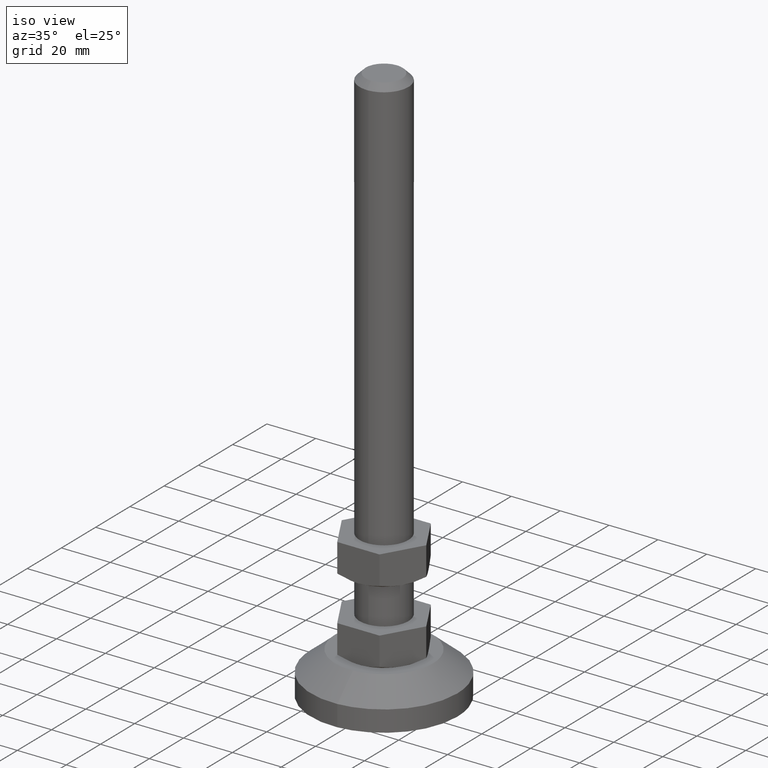
[diagram: clean part render]
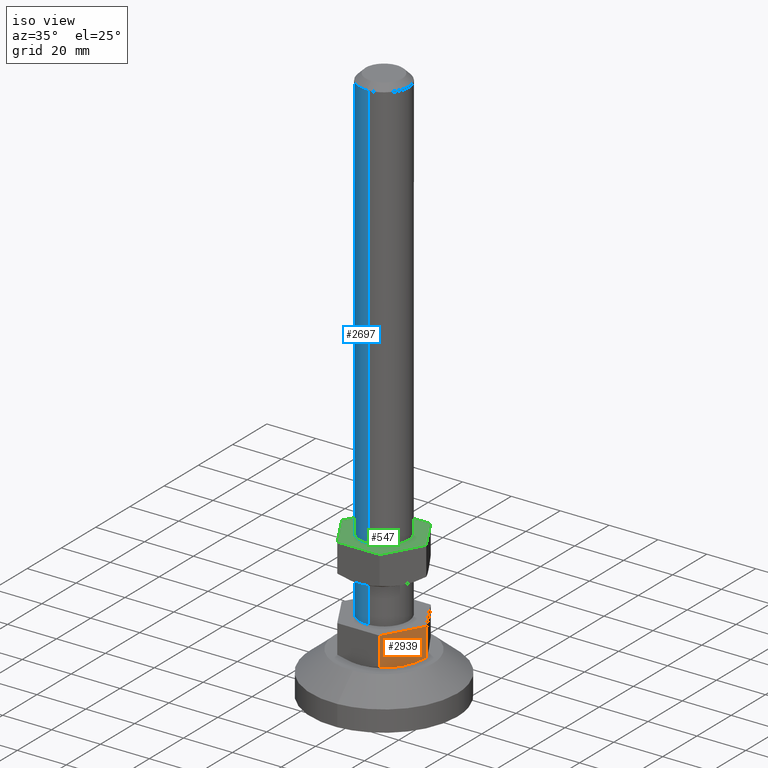
[diagram: same view with three faces highlighted in distinct colors, each labeled with its STEP entity id]
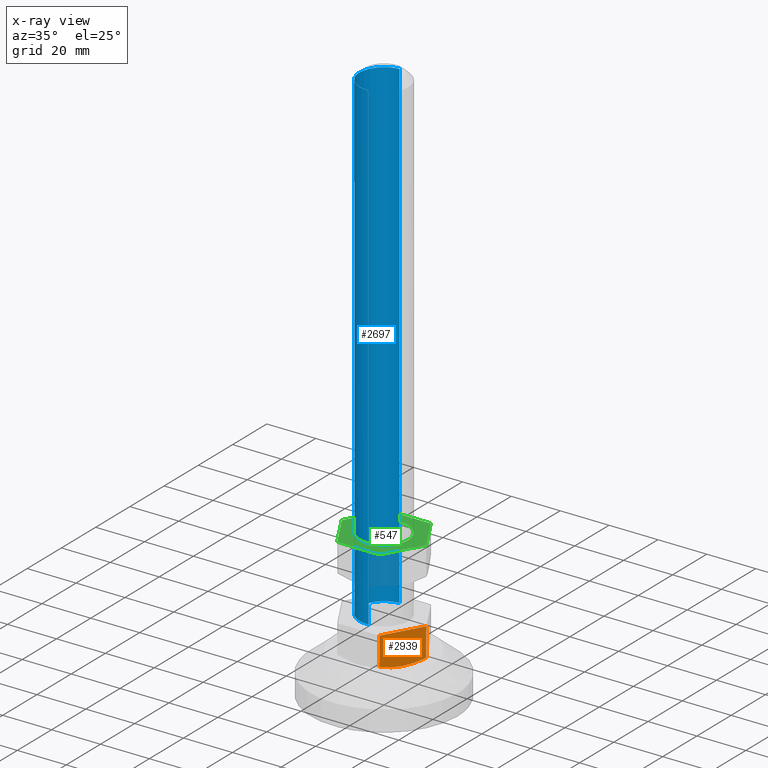
[diagram: x-ray of the same camera — body ghosted, the three highlighted faces saturated]
A machine part, iso view with three faces highlighted in distinct colors.
The next image is the same camera in x-ray (body ghosted, the three faces saturated) — at least one of them is partly hidden behind the body in this view.
Their STEP definitions:

[orange] entity #2939 — the highlighted face is a freeform B-spline surface patch.
#2775=CARTESIAN_POINT('',(8.639746000000001,-15.0,30.0));
#2776=VERTEX_POINT('',#2775);
#2782=CARTESIAN_POINT('',(17.300000000000001,0.0,30.0));
#2783=VERTEX_POINT('',#2782);
#2784=CARTESIAN_POINT('',(17.300000000000001,0.0,30.0));
#2785=CARTESIAN_POINT('',(8.639746000000001,-15.0,30.0));
#2786=QUASI_UNIFORM_CURVE('',1,(#2784,#2785),.UNSPECIFIED.,.F.,.U.);
#2787=EDGE_CURVE('',#2783,#2776,#2786,.T.);
#2860=CARTESIAN_POINT('',(8.639746000000001,-15.0,18.345671394023451));
#2861=VERTEX_POINT('',#2860);
#2884=CARTESIAN_POINT('',(8.639746000000001,-15.0,30.0));
#2885=CARTESIAN_POINT('',(8.639746000000001,-15.0,18.345671394023451));
#2886=QUASI_UNIFORM_CURVE('',1,(#2884,#2885),.UNSPECIFIED.,.F.,.U.);
#2887=EDGE_CURVE('',#2776,#2861,#2886,.T.);
#2893=CARTESIAN_POINT('',(8.207166329485292,-15.749249970927110,16.352748238170800));
#2894=CARTESIAN_POINT('',(17.732579902800861,0.749250373258441,16.352748238170800));
#2895=CARTESIAN_POINT('',(8.207166329485292,-15.749249970927110,30.649250503709020));
#2896=CARTESIAN_POINT('',(17.732579902800861,0.749250373258441,30.649250503709020));
#2897=B_SPLINE_SURFACE_WITH_KNOTS('',1,1,((#2893,#2895),(#2894,#2896)),.UNSPECIFIED.,.F.,.F.,.U.,(2,2),(2,2),(0.0,19.050827209068778),(0.0,14.296502265538219),.UNSPECIFIED.);
#2898=ORIENTED_EDGE('',*,*,#2887,.T.);
#2899=CARTESIAN_POINT('',(12.901939603467930,-7.617664590615140,17.001998405069241));
#2900=VERTEX_POINT('',#2899);
#2901=CARTESIAN_POINT('',(8.639746000000001,-15.0,18.345671394023451));
#2902=CARTESIAN_POINT('',(9.346699002463261,-13.775521559715949,17.936786708157431));
#2903=CARTESIAN_POINT('',(10.058822556558530,-12.542087461208480,17.599588853040981));
#2904=CARTESIAN_POINT('',(11.138194711815339,-10.672560165504271,17.248891182405089));
#2905=CARTESIAN_POINT('',(11.499854491871149,-10.046147090518179,17.157905461858739));
#2906=CARTESIAN_POINT('',(12.207793487163350,-8.819960858078387,17.037941834726372));
#2907=CARTESIAN_POINT('',(12.553853940876440,-8.220566606701741,17.005930920946739));
#2908=CARTESIAN_POINT('',(12.901939603467930,-7.617664590615140,17.001998405069241));
#2909=B_SPLINE_CURVE_WITH_KNOTS('',3,(#2901,#2902,#2903,#2904,#2905,#2906,#2907,#2908),.UNSPECIFIED.,.F.,.U.,(4,2,2,4),(0.0,0.250000000000000,0.375000000000000,0.493260525462259),.UNSPECIFIED.);
#2910=EDGE_CURVE('',#2861,#2900,#2909,.T.);
#2911=ORIENTED_EDGE('',*,*,#2910,.T.);
#2912=CARTESIAN_POINT('',(17.300000000000001,1.536538E-016,18.339745951230899));
#2913=VERTEX_POINT('',#2912);
#2914=CARTESIAN_POINT('',(12.901939603467930,-7.617664590615140,17.001998405069241));
#2915=CARTESIAN_POINT('',(12.921776435960270,-7.583306186543325,17.001774301243760));
#2916=CARTESIAN_POINT('',(12.941619845670770,-7.548936390393943,17.001641386909998));
#2917=CARTESIAN_POINT('',(13.053511576403380,-7.355134214645325,17.001408035649739));
#2918=CARTESIAN_POINT('',(13.145694601741759,-7.195468520294777,17.003175199559148));
#2919=CARTESIAN_POINT('',(13.330345358442511,-6.875644006228347,17.010656818920161));
#2920=CARTESIAN_POINT('',(13.422653369392910,-6.715761830399816,17.016367724491818));
#2921=CARTESIAN_POINT('',(13.698904344309550,-6.237281073484046,17.039291422041991));
#2922=CARTESIAN_POINT('',(13.882431983342920,-5.919401856282460,17.062310657467229));
#2923=CARTESIAN_POINT('',(14.431178741683460,-4.968944524970136,17.153576331037790));
#2924=CARTESIAN_POINT('',(14.794557383499500,-4.339554211414479,17.244082970659679));
#2925=CARTESIAN_POINT('',(15.878224674771040,-2.462587273903033,17.593839706188451));
#2926=CARTESIAN_POINT('',(16.592069859191071,-1.226171058871265,17.931022203108821));
#2927=CARTESIAN_POINT('',(17.300000000000001,1.536538E-016,18.339745951230899));
#2928=B_SPLINE_CURVE_WITH_KNOTS('',3,(#2914,#2915,#2916,#2917,#2918,#2919,#2920,#2921,#2922,#2923,#2924,#2925,#2926,#2927),.UNSPECIFIED.,.F.,.U.,(4,2,2,2,2,2,4),(0.493260525462259,0.500000000000001,0.531250000000000,0.562500000000000,0.625000000000000,0.750000000000000,1.0),.UNSPECIFIED.);
#2929=EDGE_CURVE('',#2900,#2913,#2928,.T.);
#2930=ORIENTED_EDGE('',*,*,#2929,.T.);
#2931=CARTESIAN_POINT('',(17.300000000000001,0.0,30.0));
#2932=CARTESIAN_POINT('',(17.300000000000001,1.536538E-016,18.339745951230899));
#2933=QUASI_UNIFORM_CURVE('',1,(#2931,#2932),.UNSPECIFIED.,.F.,.U.);
#2934=EDGE_CURVE('',#2783,#2913,#2933,.T.);
#2935=ORIENTED_EDGE('',*,*,#2934,.F.);
#2936=ORIENTED_EDGE('',*,*,#2787,.T.);
#2937=EDGE_LOOP('',(#2898,#2911,#2930,#2935,#2936));
#2938=FACE_OUTER_BOUND('',#2937,.T.);
#2939=ADVANCED_FACE('',(#2938),#2897,.T.);

[blue] entity #2697 — the highlighted face is a freeform B-spline surface patch.
#2512=CARTESIAN_POINT('',(-0.087265358027366,-9.999619231028863,227.499999999586410));
#2513=VERTEX_POINT('',#2512);
#2514=CARTESIAN_POINT('',(-10.0,0.0,227.500000000000000));
#2515=VERTEX_POINT('',#2514);
#2516=CARTESIAN_POINT('',(-0.087265358027366,-9.999619231028863,227.499999999586380));
#2517=CARTESIAN_POINT('',(-10.000000000001805,-9.913112103142789,227.499999999793230));
#2518=CARTESIAN_POINT('',(-10.0,0.0,227.500000000000000));
#2526=(BOUNDED_CURVE()B_SPLINE_CURVE(2,(#2516,#2517,#2518),.UNSPECIFIED.,.F.,.U.)B_SPLINE_CURVE_WITH_KNOTS((3,3),(0.251539894388537,0.500000000000000),.UNSPECIFIED.)CURVE()GEOMETRIC_REPRESENTATION_ITEM()RATIONAL_B_SPLINE_CURVE((0.996414027976477,0.708910879682913,1.0))REPRESENTATION_ITEM(''));
#2527=EDGE_CURVE('',#2513,#2515,#2526,.T.);
#2543=CARTESIAN_POINT('',(-0.610485395824550,9.981347984189556,227.500000000000000));
#2544=VERTEX_POINT('',#2543);
#2552=CARTESIAN_POINT('',(-10.0,0.0,227.500000000000000));
#2553=CARTESIAN_POINT('',(-10.0,9.407060668607512,227.499999999999970));
#2554=CARTESIAN_POINT('',(-0.610485395824553,9.981347984189556,227.500000000000030));
#2562=(BOUNDED_CURVE()B_SPLINE_CURVE(2,(#2552,#2553,#2554),.UNSPECIFIED.,.F.,.U.)B_SPLINE_CURVE_WITH_KNOTS((3,3),(0.500000000000000,0.739332962233740),.UNSPECIFIED.)CURVE()GEOMETRIC_REPRESENTATION_ITEM()RATIONAL_B_SPLINE_CURVE((1.0,0.719603993292806,0.976072041655567))REPRESENTATION_ITEM(''));
#2563=EDGE_CURVE('',#2515,#2544,#2562,.T.);
#2586=CARTESIAN_POINT('',(0.610485395824550,-9.981347984189556,227.500000000000000));
#2587=VERTEX_POINT('',#2586);
#2588=CARTESIAN_POINT('',(0.610485395824550,-9.981347984189556,227.500000000000000));
#2589=CARTESIAN_POINT('',(0.378223333395383,-9.995555024014161,227.499999999862010));
#2590=CARTESIAN_POINT('',(0.145425529916575,-10.001650955547889,227.499999999724310));
#2591=CARTESIAN_POINT('',(-0.087265358027366,-9.999619231028863,227.499999999586410));
#2592=B_SPLINE_CURVE_WITH_KNOTS('',3,(#2588,#2589,#2590,#2591),.UNSPECIFIED.,.F.,.U.,(4,4),(0.000000024053163,0.698140563642128),.UNSPECIFIED.);
#2593=EDGE_CURVE('',#2587,#2513,#2592,.T.);
#2630=CARTESIAN_POINT('',(0.610485395348570,-9.981347984218667,232.437500000000000));
#2631=CARTESIAN_POINT('',(-9.370862588870097,-10.591833379567237,232.437500000000090));
#2632=CARTESIAN_POINT('',(-9.981347984218667,-0.610485395348570,232.437500000000000));
#2633=CARTESIAN_POINT('',(-10.591833379567237,9.370862588870097,232.437500000000090));
#2634=CARTESIAN_POINT('',(-0.610485395348570,9.981347984218667,232.437500000000000));
#2635=CARTESIAN_POINT('',(0.610485395348570,-9.981347984218667,24.939062500000009));
#2636=CARTESIAN_POINT('',(-9.370862588870097,-10.591833379567237,24.939062500000006));
#2637=CARTESIAN_POINT('',(-9.981347984218667,-0.610485395348570,24.939062500000009));
#2638=CARTESIAN_POINT('',(-10.591833379567237,9.370862588870097,24.939062500000006));
#2639=CARTESIAN_POINT('',(-0.610485395348570,9.981347984218667,24.939062500000009));
#2647=(BOUNDED_SURFACE()B_SPLINE_SURFACE(2,1,((#2630,#2635),(#2631,#2636),(#2632,#2637),(#2633,#2638),(#2634,#2639)),.UNSPECIFIED.,.F.,.F.,.U.)B_SPLINE_SURFACE_WITH_KNOTS((3,2,3),(2,2),(0.0,16.568542494923800,33.137084989847587),(0.0,207.498437500000110),.UNSPECIFIED.)GEOMETRIC_REPRESENTATION_ITEM()RATIONAL_B_SPLINE_SURFACE(((1.0,1.0),(0.707106781186548,0.707106781186548),(1.0,1.0),(0.707106781186548,0.707106781186548),(1.0,1.0)))REPRESENTATION_ITEM('')SURFACE());
#2648=CARTESIAN_POINT('',(0.610485395824550,-9.981347984189556,29.999999999999989));
#2649=VERTEX_POINT('',#2648);
#2650=CARTESIAN_POINT('',(-10.0,0.0,30.0));
#2651=VERTEX_POINT('',#2650);
#2652=CARTESIAN_POINT('',(0.610485395824551,-9.981347984189558,30.0));
#2653=CARTESIAN_POINT('',(0.305527633224547,-10.0,30.000000000000007));
#2654=CARTESIAN_POINT('',(0.0,-10.0,30.0));
#2655=CARTESIAN_POINT('',(-10.000000000000002,-10.000000000000002,30.000000000000004));
#2656=CARTESIAN_POINT('',(-10.0,0.0,30.0));
#2664=(BOUNDED_CURVE()B_SPLINE_CURVE(2,(#2652,#2653,#2654,#2655,#2656),.UNSPECIFIED.,.F.,.U.)B_SPLINE_CURVE_WITH_KNOTS((3,2,3),(0.239332962233740,0.250000000000000,0.500000000000000),.UNSPECIFIED.)CURVE()GEOMETRIC_REPRESENTATION_ITEM()RATIONAL_B_SPLINE_CURVE((0.976072041655567,0.987502787893742,1.0,0.707106781186548,1.0))REPRESENTATION_ITEM(''));
#2665=EDGE_CURVE('',#2649,#2651,#2664,.T.);
#2666=ORIENTED_EDGE('',*,*,#2665,.F.);
#2667=CARTESIAN_POINT('',(0.610485395824550,-9.981347984189556,227.500000000000000));
#2668=CARTESIAN_POINT('',(0.610485395824550,-9.981347984189556,29.999999999999989));
#2669=QUASI_UNIFORM_CURVE('',1,(#2667,#2668),.UNSPECIFIED.,.F.,.U.);
#2670=EDGE_CURVE('',#2587,#2649,#2669,.T.);
#2671=ORIENTED_EDGE('',*,*,#2670,.F.);
#2672=ORIENTED_EDGE('',*,*,#2593,.T.);
#2673=ORIENTED_EDGE('',*,*,#2527,.T.);
#2674=ORIENTED_EDGE('',*,*,#2563,.T.);
#2675=CARTESIAN_POINT('',(-0.610485395824550,9.981347984189556,29.999999999999989));
#2676=VERTEX_POINT('',#2675);
#2677=CARTESIAN_POINT('',(-0.610485395824550,9.981347984189556,227.500000000000000));
#2678=CARTESIAN_POINT('',(-0.610485395824550,9.981347984189556,29.999999999999989));
#2679=QUASI_UNIFORM_CURVE('',1,(#2677,#2678),.UNSPECIFIED.,.F.,.U.);
#2680=EDGE_CURVE('',#2544,#2676,#2679,.T.);
#2681=ORIENTED_EDGE('',*,*,#2680,.T.);
#2682=CARTESIAN_POINT('',(-10.0,0.0,30.0));
#2683=CARTESIAN_POINT('',(-10.0,9.407060668607512,29.999999999999996));
#2684=CARTESIAN_POINT('',(-0.610485395824553,9.981347984189556,30.0));
#2692=(BOUNDED_CURVE()B_SPLINE_CURVE(2,(#2682,#2683,#2684),.UNSPECIFIED.,.F.,.U.)B_SPLINE_CURVE_WITH_KNOTS((3,3),(0.500000000000000,0.739332962233740),.UNSPECIFIED.)CURVE()GEOMETRIC_REPRESENTATION_ITEM()RATIONAL_B_SPLINE_CURVE((1.0,0.719603993292806,0.976072041655567))REPRESENTATION_ITEM(''));
#2693=EDGE_CURVE('',#2651,#2676,#2692,.T.);
#2694=ORIENTED_EDGE('',*,*,#2693,.F.);
#2695=EDGE_LOOP('',(#2666,#2671,#2672,#2673,#2674,#2681,#2694));
#2696=FACE_OUTER_BOUND('',#2695,.T.);
#2697=ADVANCED_FACE('',(#2696),#2647,.T.);

[green] entity #547 — the highlighted face is a freeform B-spline surface patch.
#388=CARTESIAN_POINT('',(-10.0,0.0,60.0));
#389=VERTEX_POINT('',#388);
#390=CARTESIAN_POINT('',(-0.784590957709351,-9.969173337297367,60.0));
#391=VERTEX_POINT('',#390);
#392=CARTESIAN_POINT('',(-10.0,0.0,60.0));
#393=CARTESIAN_POINT('',(-10.0,-9.243904916181281,60.0));
#394=CARTESIAN_POINT('',(-0.784590957709351,-9.969173337297368,60.0));
#402=(BOUNDED_CURVE()B_SPLINE_CURVE(2,(#392,#393,#394),.UNSPECIFIED.,.F.,.U.)B_SPLINE_CURVE_WITH_KNOTS((3,3),(0.0,0.236331300625357),.UNSPECIFIED.)CURVE()GEOMETRIC_REPRESENTATION_ITEM()RATIONAL_B_SPLINE_CURVE((1.0,0.723120658613878,0.969723356156352))REPRESENTATION_ITEM(''));
#403=EDGE_CURVE('',#389,#391,#402,.T.);
#412=CARTESIAN_POINT('',(0.784590957709353,9.969173337297365,60.0));
#413=VERTEX_POINT('',#412);
#419=CARTESIAN_POINT('',(0.784590957709351,9.969173337297368,60.0));
#420=CARTESIAN_POINT('',(0.392901070293147,10.000000000000002,60.000000000000007));
#421=CARTESIAN_POINT('',(0.0,10.0,60.0));
#422=CARTESIAN_POINT('',(-10.000000000000002,10.000000000000002,60.0));
#423=CARTESIAN_POINT('',(-10.0,0.0,60.0));
#431=(BOUNDED_CURVE()B_SPLINE_CURVE(2,(#419,#420,#421,#422,#423),.UNSPECIFIED.,.F.,.U.)B_SPLINE_CURVE_WITH_KNOTS((3,2,3),(0.736331300625357,0.750000000000000,1.0),.UNSPECIFIED.)CURVE()GEOMETRIC_REPRESENTATION_ITEM()RATIONAL_B_SPLINE_CURVE((0.969723356156352,0.983986122572670,1.0,0.707106781186548,1.0))REPRESENTATION_ITEM(''));
#432=EDGE_CURVE('',#413,#389,#431,.T.);
#455=CARTESIAN_POINT('',(10.0,0.0,60.0));
#456=VERTEX_POINT('',#455);
#457=CARTESIAN_POINT('',(-0.784590957709351,-9.969173337297368,60.0));
#458=CARTESIAN_POINT('',(-0.392901070293147,-10.000000000000002,60.000000000000007));
#459=CARTESIAN_POINT('',(0.0,-10.0,60.0));
#460=CARTESIAN_POINT('',(10.000000000000002,-10.000000000000002,60.0));
#461=CARTESIAN_POINT('',(10.0,0.0,60.0));
#469=(BOUNDED_CURVE()B_SPLINE_CURVE(2,(#457,#458,#459,#460,#461),.UNSPECIFIED.,.F.,.U.)B_SPLINE_CURVE_WITH_KNOTS((3,2,3),(0.236331300625357,0.250000000000000,0.500000000000000),.UNSPECIFIED.)CURVE()GEOMETRIC_REPRESENTATION_ITEM()RATIONAL_B_SPLINE_CURVE((0.969723356156352,0.983986122572670,1.0,0.707106781186548,1.0))REPRESENTATION_ITEM(''));
#470=EDGE_CURVE('',#391,#456,#469,.T.);
#472=CARTESIAN_POINT('',(10.0,0.0,60.0));
#473=CARTESIAN_POINT('',(10.0,9.243904916181281,60.0));
#474=CARTESIAN_POINT('',(0.784590957709351,9.969173337297368,60.0));
#482=(BOUNDED_CURVE()B_SPLINE_CURVE(2,(#472,#473,#474),.UNSPECIFIED.,.F.,.U.)B_SPLINE_CURVE_WITH_KNOTS((3,3),(0.500000000000000,0.736331300625357),.UNSPECIFIED.)CURVE()GEOMETRIC_REPRESENTATION_ITEM()RATIONAL_B_SPLINE_CURVE((1.0,0.723120658613878,0.969723356156352))REPRESENTATION_ITEM(''));
#483=EDGE_CURVE('',#456,#413,#482,.T.);
#492=CARTESIAN_POINT('',(-19.028269932938489,16.498499941854170,60.0));
#493=CARTESIAN_POINT('',(19.028270860982811,16.498499941854170,60.0));
#494=CARTESIAN_POINT('',(-19.028269932938489,-16.498500746516878,60.0));
#495=CARTESIAN_POINT('',(19.028270860982811,-16.498500746516878,60.0));
#496=B_SPLINE_SURFACE_WITH_KNOTS('',1,1,((#492,#494),(#493,#495)),.UNSPECIFIED.,.F.,.F.,.U.,(2,2),(2,2),(0.0,38.056540793921300),(0.0,32.997000688371060),.UNSPECIFIED.);
#497=CARTESIAN_POINT('',(-17.300000000000001,0.0,60.0));
#498=VERTEX_POINT('',#497);
#499=CARTESIAN_POINT('',(-8.639746000000001,15.0,60.0));
#500=VERTEX_POINT('',#499);
#501=CARTESIAN_POINT('',(-17.300000000000001,0.0,60.0));
#502=CARTESIAN_POINT('',(-8.639746000000001,15.0,60.0));
#503=QUASI_UNIFORM_CURVE('',1,(#501,#502),.UNSPECIFIED.,.F.,.U.);
#504=EDGE_CURVE('',#498,#500,#503,.T.);
#505=ORIENTED_EDGE('',*,*,#504,.F.);
#506=CARTESIAN_POINT('',(-8.639746000000001,-15.0,60.0));
#507=VERTEX_POINT('',#506);
#508=CARTESIAN_POINT('',(-8.639746000000001,-15.0,60.0));
#509=CARTESIAN_POINT('',(-17.300000000000001,0.0,60.0));
#510=QUASI_UNIFORM_CURVE('',1,(#508,#509),.UNSPECIFIED.,.F.,.U.);
#511=EDGE_CURVE('',#507,#498,#510,.T.);
#512=ORIENTED_EDGE('',*,*,#511,.F.);
#513=CARTESIAN_POINT('',(8.639746000000001,-15.0,60.0));
#514=VERTEX_POINT('',#513);
#515=CARTESIAN_POINT('',(8.639746000000001,-15.0,60.0));
#516=CARTESIAN_POINT('',(-8.639746000000001,-15.0,60.0));
#517=QUASI_UNIFORM_CURVE('',1,(#515,#516),.UNSPECIFIED.,.F.,.U.);
#518=EDGE_CURVE('',#514,#507,#517,.T.);
#519=ORIENTED_EDGE('',*,*,#518,.F.);
#520=CARTESIAN_POINT('',(17.300000000000001,0.0,60.0));
#521=VERTEX_POINT('',#520);
#522=CARTESIAN_POINT('',(17.300000000000001,0.0,60.0));
#523=CARTESIAN_POINT('',(8.639746000000001,-15.0,60.0));
#524=QUASI_UNIFORM_CURVE('',1,(#522,#523),.UNSPECIFIED.,.F.,.U.);
#525=EDGE_CURVE('',#521,#514,#524,.T.);
#526=ORIENTED_EDGE('',*,*,#525,.F.);
#527=CARTESIAN_POINT('',(8.639746000000001,15.0,60.0));
#528=VERTEX_POINT('',#527);
#529=CARTESIAN_POINT('',(8.639746000000001,15.0,60.0));
#530=CARTESIAN_POINT('',(17.300000000000001,0.0,60.0));
#531=QUASI_UNIFORM_CURVE('',1,(#529,#530),.UNSPECIFIED.,.F.,.U.);
#532=EDGE_CURVE('',#528,#521,#531,.T.);
#533=ORIENTED_EDGE('',*,*,#532,.F.);
#534=CARTESIAN_POINT('',(-8.639746000000001,15.0,60.0));
#535=CARTESIAN_POINT('',(8.639746000000001,15.0,60.0));
#536=QUASI_UNIFORM_CURVE('',1,(#534,#535),.UNSPECIFIED.,.F.,.U.);
#537=EDGE_CURVE('',#500,#528,#536,.T.);
#538=ORIENTED_EDGE('',*,*,#537,.F.);
#539=EDGE_LOOP('',(#505,#512,#519,#526,#533,#538));
#540=FACE_OUTER_BOUND('',#539,.T.);
#541=ORIENTED_EDGE('',*,*,#483,.F.);
#542=ORIENTED_EDGE('',*,*,#470,.F.);
#543=ORIENTED_EDGE('',*,*,#403,.F.);
#544=ORIENTED_EDGE('',*,*,#432,.F.);
#545=EDGE_LOOP('',(#541,#542,#543,#544));
#546=FACE_BOUND('',#545,.T.);
#547=ADVANCED_FACE('',(#540,#546),#496,.F.);